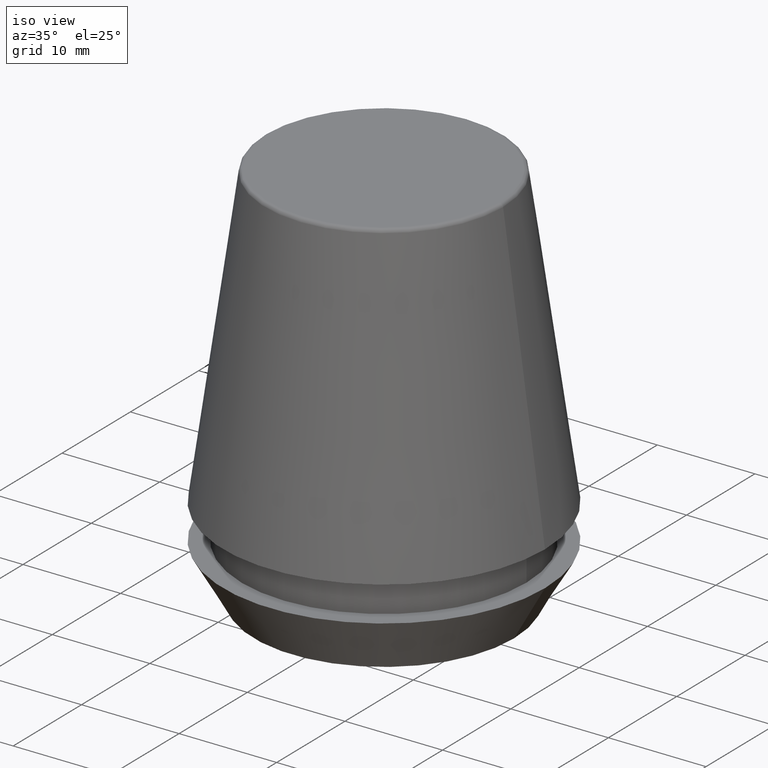
[diagram: clean part render]
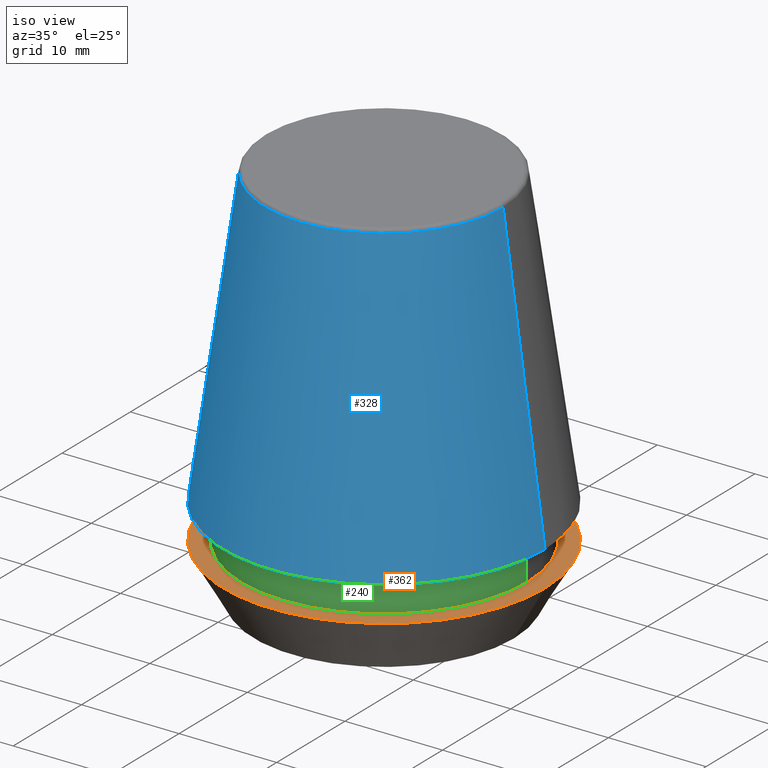
[diagram: same view with three faces highlighted in distinct colors, each labeled with its STEP entity id]
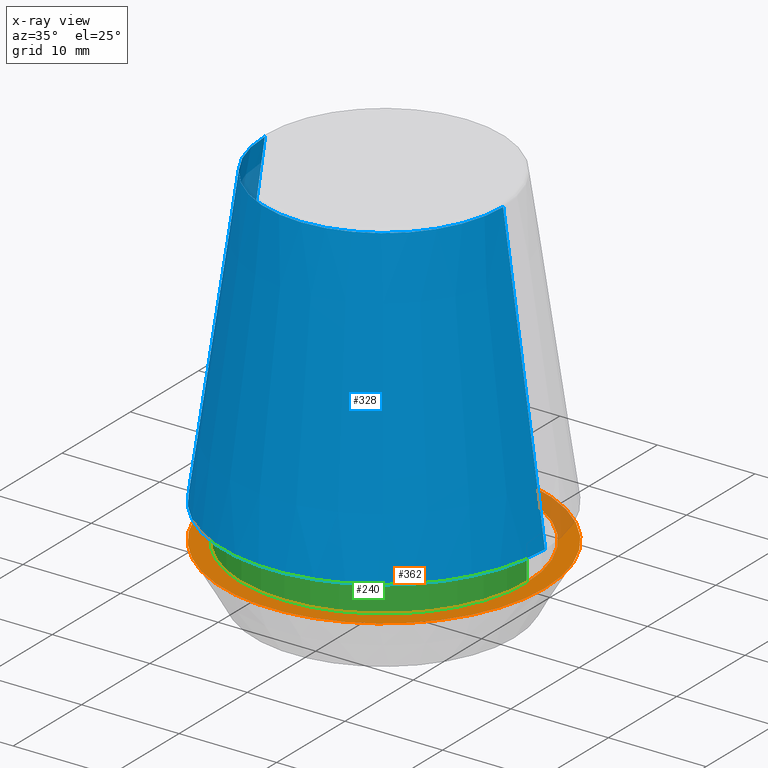
[diagram: x-ray of the same camera — body ghosted, the three highlighted faces saturated]
A machine part, iso view with three faces highlighted in distinct colors.
The next image is the same camera in x-ray (body ghosted, the three faces saturated) — at least one of them is partly hidden behind the body in this view.
Their STEP definitions:

[orange] entity #362 — the highlighted planar face has unit normal (0, 0, -1).
#1 = CARTESIAN_POINT ( 'NONE',  ( 0.0000000000000000000, 0.0000000000000000000, 5.500000000000005300 ) ) ;
#11 = CARTESIAN_POINT ( 'NONE',  ( 0.0000000000000000000, 0.0000000000000000000, 5.500000000000005300 ) ) ;
#18 = AXIS2_PLACEMENT_3D ( 'NONE', #196, #75, #138 ) ;
#27 = ORIENTED_EDGE ( 'NONE', *, *, #276, .T. ) ;
#64 = AXIS2_PLACEMENT_3D ( 'NONE', #130, #327, #156 ) ;
#68 = CARTESIAN_POINT ( 'NONE',  ( 16.50000000000000000, 0.0000000000000000000, 5.500000000000005300 ) ) ;
#69 = FACE_BOUND ( 'NONE', #216, .T. ) ;
#74 = DIRECTION ( 'NONE',  ( 1.000000000000000000, 0.0000000000000000000, 0.0000000000000000000 ) ) ;
#75 = DIRECTION ( 'NONE',  ( -0.0000000000000000000, -0.0000000000000000000, 1.000000000000000000 ) ) ;
#88 = CIRCLE ( 'NONE', #64, 14.60000000000000000 ) ;
#90 = AXIS2_PLACEMENT_3D ( 'NONE', #275, #182, #211 ) ;
#96 = VERTEX_POINT ( 'NONE', #220 ) ;
#104 = ORIENTED_EDGE ( 'NONE', *, *, #105, .F. ) ;
#105 = EDGE_CURVE ( 'NONE', #256, #96, #272, .T. ) ;
#122 = AXIS2_PLACEMENT_3D ( 'NONE', #1, #262, #296 ) ;
#129 = CARTESIAN_POINT ( 'NONE',  ( -16.50000000000000000, 2.020667218593133100E-015, 5.500000000000005300 ) ) ;
#130 = CARTESIAN_POINT ( 'NONE',  ( 0.0000000000000000000, 0.0000000000000000000, 5.500000000000005300 ) ) ;
#138 = DIRECTION ( 'NONE',  ( 1.000000000000000000, 0.0000000000000000000, 0.0000000000000000000 ) ) ;
#153 = CIRCLE ( 'NONE', #122, 16.50000000000000000 ) ;
#156 = DIRECTION ( 'NONE',  ( 1.000000000000000000, 0.0000000000000000000, 0.0000000000000000000 ) ) ;
#168 = CIRCLE ( 'NONE', #18, 16.50000000000000000 ) ;
#182 = DIRECTION ( 'NONE',  ( 0.0000000000000000000, 0.0000000000000000000, -1.000000000000000000 ) ) ;
#186 = ORIENTED_EDGE ( 'NONE', *, *, #377, .T. ) ;
#196 = CARTESIAN_POINT ( 'NONE',  ( 0.0000000000000000000, 0.0000000000000000000, 5.500000000000005300 ) ) ;
#210 = EDGE_CURVE ( 'NONE', #96, #256, #88, .T. ) ;
#211 = DIRECTION ( 'NONE',  ( -1.000000000000000000, 0.0000000000000000000, -0.0000000000000000000 ) ) ;
#214 = PLANE ( 'NONE',  #90 ) ;
#215 = VERTEX_POINT ( 'NONE', #68 ) ;
#216 = EDGE_LOOP ( 'NONE', ( #274, #104 ) ) ;
#219 = AXIS2_PLACEMENT_3D ( 'NONE', #11, #241, #74 ) ;
#220 = CARTESIAN_POINT ( 'NONE',  ( 14.60000000000000000, 0.0000000000000000000, 5.500000000000005300 ) ) ;
#241 = DIRECTION ( 'NONE',  ( -0.0000000000000000000, -0.0000000000000000000, 1.000000000000000000 ) ) ;
#245 = VERTEX_POINT ( 'NONE', #129 ) ;
#256 = VERTEX_POINT ( 'NONE', #330 ) ;
#257 = FACE_OUTER_BOUND ( 'NONE', #372, .T. ) ;
#262 = DIRECTION ( 'NONE',  ( -0.0000000000000000000, -0.0000000000000000000, 1.000000000000000000 ) ) ;
#272 = CIRCLE ( 'NONE', #219, 14.60000000000000000 ) ;
#274 = ORIENTED_EDGE ( 'NONE', *, *, #210, .F. ) ;
#275 = CARTESIAN_POINT ( 'NONE',  ( 0.0000000000000000000, 16.50000000000000000, 5.500000000000002700 ) ) ;
#276 = EDGE_CURVE ( 'NONE', #215, #245, #168, .T. ) ;
#296 = DIRECTION ( 'NONE',  ( 1.000000000000000000, 0.0000000000000000000, 0.0000000000000000000 ) ) ;
#327 = DIRECTION ( 'NONE',  ( -0.0000000000000000000, -0.0000000000000000000, 1.000000000000000000 ) ) ;
#330 = CARTESIAN_POINT ( 'NONE',  ( -14.60000000000000000, 1.787984326755135800E-015, 5.500000000000005300 ) ) ;
#362 = ADVANCED_FACE ( 'NONE', ( #69, #257 ), #214, .F. ) ;
#372 = EDGE_LOOP ( 'NONE', ( #27, #186 ) ) ;
#377 = EDGE_CURVE ( 'NONE', #245, #215, #153, .T. ) ;

[blue] entity #328 — the highlighted conical surface has half-angle 8 deg.
#6 = CARTESIAN_POINT ( 'NONE',  ( 16.50032537154048700, 2.020707065114692300E-015, 9.099999999999997900 ) ) ;
#8 = CARTESIAN_POINT ( 'NONE',  ( -16.50032537154048700, 0.0000000000000000000, 9.099999999999997900 ) ) ;
#17 = DIRECTION ( 'NONE',  ( -1.000000000000000000, 0.0000000000000000000, 0.0000000000000000000 ) ) ;
#30 = VERTEX_POINT ( 'NONE', #198 ) ;
#48 = CIRCLE ( 'NONE', #184, 16.50032537154048700 ) ;
#54 = DIRECTION ( 'NONE',  ( -0.1391731009600586900, 0.0000000000000000000, -0.9902680687415712500 ) ) ;
#56 = VERTEX_POINT ( 'NONE', #282 ) ;
#98 = AXIS2_PLACEMENT_3D ( 'NONE', #347, #367, #101 ) ;
#101 = DIRECTION ( 'NONE',  ( 1.000000000000000000, 0.0000000000000000000, 0.0000000000000000000 ) ) ;
#121 = ORIENTED_EDGE ( 'NONE', *, *, #354, .F. ) ;
#137 = AXIS2_PLACEMENT_3D ( 'NONE', #357, #359, #17 ) ;
#139 = EDGE_LOOP ( 'NONE', ( #121, #202, #325, #144 ) ) ;
#144 = ORIENTED_EDGE ( 'NONE', *, *, #255, .T. ) ;
#147 = FACE_OUTER_BOUND ( 'NONE', #139, .T. ) ;
#148 = LINE ( 'NONE', #304, #285 ) ;
#160 = CONICAL_SURFACE ( 'NONE', #137, 16.50032537154048700, 0.1396263401595395900 ) ;
#169 = VERTEX_POINT ( 'NONE', #8 ) ;
#178 = EDGE_CURVE ( 'NONE', #30, #56, #309, .T. ) ;
#181 = DIRECTION ( 'NONE',  ( 1.000000000000000000, 0.0000000000000000000, 0.0000000000000000000 ) ) ;
#184 = AXIS2_PLACEMENT_3D ( 'NONE', #264, #386, #181 ) ;
#195 = EDGE_CURVE ( 'NONE', #30, #169, #148, .T. ) ;
#198 = CARTESIAN_POINT ( 'NONE',  ( -12.20600611160694300, 0.0000000000000000000, 39.65566924038402900 ) ) ;
#202 = ORIENTED_EDGE ( 'NONE', *, *, #178, .F. ) ;
#225 = LINE ( 'NONE', #252, #381 ) ;
#252 = CARTESIAN_POINT ( 'NONE',  ( 16.50032537154048700, 2.020707065114692300E-015, 9.099999999999997900 ) ) ;
#255 = EDGE_CURVE ( 'NONE', #169, #332, #48, .T. ) ;
#264 = CARTESIAN_POINT ( 'NONE',  ( 0.0000000000000000000, 0.0000000000000000000, 9.099999999999997900 ) ) ;
#273 = DIRECTION ( 'NONE',  ( 0.1391731009600586900, 1.704378926181473100E-017, -0.9902680687415712500 ) ) ;
#282 = CARTESIAN_POINT ( 'NONE',  ( 12.20600611160694300, 1.757755848304969800E-015, 39.65566924038402900 ) ) ;
#285 = VECTOR ( 'NONE', #54, 1000.000000000000000 ) ;
#304 = CARTESIAN_POINT ( 'NONE',  ( -16.50032537154048700, 0.0000000000000000000, 9.099999999999997900 ) ) ;
#309 = CIRCLE ( 'NONE', #98, 12.20600611160694300 ) ;
#325 = ORIENTED_EDGE ( 'NONE', *, *, #195, .T. ) ;
#328 = ADVANCED_FACE ( 'NONE', ( #147 ), #160, .T. ) ;
#332 = VERTEX_POINT ( 'NONE', #6 ) ;
#347 = CARTESIAN_POINT ( 'NONE',  ( 0.0000000000000000000, 0.0000000000000000000, 39.65566924038402900 ) ) ;
#354 = EDGE_CURVE ( 'NONE', #56, #332, #225, .T. ) ;
#357 = CARTESIAN_POINT ( 'NONE',  ( 0.0000000000000000000, 0.0000000000000000000, 9.099999999999997900 ) ) ;
#359 = DIRECTION ( 'NONE',  ( 0.0000000000000000000, 0.0000000000000000000, -1.000000000000000000 ) ) ;
#367 = DIRECTION ( 'NONE',  ( -0.0000000000000000000, -0.0000000000000000000, 1.000000000000000000 ) ) ;
#381 = VECTOR ( 'NONE', #273, 1000.000000000000000 ) ;
#386 = DIRECTION ( 'NONE',  ( -0.0000000000000000000, -0.0000000000000000000, 1.000000000000000000 ) ) ;

[green] entity #240 — the highlighted cylindrical surface (partial cylindrical patch) has radius 14.6 mm, axis along (-0, -0, 1).
#11 = CARTESIAN_POINT ( 'NONE',  ( 0.0000000000000000000, 0.0000000000000000000, 5.500000000000005300 ) ) ;
#19 = CYLINDRICAL_SURFACE ( 'NONE', #31, 14.60000000000000000 ) ;
#22 = VERTEX_POINT ( 'NONE', #49 ) ;
#31 = AXIS2_PLACEMENT_3D ( 'NONE', #374, #342, #99 ) ;
#46 = EDGE_CURVE ( 'NONE', #96, #155, #353, .T. ) ;
#49 = CARTESIAN_POINT ( 'NONE',  ( -14.60000000000000000, 1.787984326755135800E-015, 9.099999999999997900 ) ) ;
#72 = CARTESIAN_POINT ( 'NONE',  ( 0.0000000000000000000, 0.0000000000000000000, 9.099999999999997900 ) ) ;
#74 = DIRECTION ( 'NONE',  ( 1.000000000000000000, 0.0000000000000000000, 0.0000000000000000000 ) ) ;
#82 = VECTOR ( 'NONE', #343, 1000.000000000000000 ) ;
#96 = VERTEX_POINT ( 'NONE', #220 ) ;
#99 = DIRECTION ( 'NONE',  ( 1.000000000000000000, 0.0000000000000000000, 0.0000000000000000000 ) ) ;
#103 = DIRECTION ( 'NONE',  ( 1.000000000000000000, 0.0000000000000000000, 0.0000000000000000000 ) ) ;
#105 = EDGE_CURVE ( 'NONE', #256, #96, #272, .T. ) ;
#111 = CARTESIAN_POINT ( 'NONE',  ( 14.60000000000000000, 0.0000000000000000000, 101.8074564848000400 ) ) ;
#124 = AXIS2_PLACEMENT_3D ( 'NONE', #72, #268, #103 ) ;
#132 = EDGE_CURVE ( 'NONE', #22, #155, #208, .T. ) ;
#155 = VERTEX_POINT ( 'NONE', #161 ) ;
#161 = CARTESIAN_POINT ( 'NONE',  ( 14.60000000000000000, 0.0000000000000000000, 9.099999999999997900 ) ) ;
#175 = FACE_OUTER_BOUND ( 'NONE', #315, .T. ) ;
#176 = ORIENTED_EDGE ( 'NONE', *, *, #132, .F. ) ;
#207 = DIRECTION ( 'NONE',  ( -0.0000000000000000000, -0.0000000000000000000, 1.000000000000000000 ) ) ;
#208 = CIRCLE ( 'NONE', #124, 14.60000000000000000 ) ;
#212 = EDGE_CURVE ( 'NONE', #256, #22, #382, .T. ) ;
#213 = CARTESIAN_POINT ( 'NONE',  ( -14.60000000000000000, 1.787984326755135800E-015, 101.8074564848000400 ) ) ;
#218 = ORIENTED_EDGE ( 'NONE', *, *, #46, .T. ) ;
#219 = AXIS2_PLACEMENT_3D ( 'NONE', #11, #241, #74 ) ;
#220 = CARTESIAN_POINT ( 'NONE',  ( 14.60000000000000000, 0.0000000000000000000, 5.500000000000005300 ) ) ;
#236 = ORIENTED_EDGE ( 'NONE', *, *, #105, .T. ) ;
#240 = ADVANCED_FACE ( 'NONE', ( #175 ), #19, .T. ) ;
#241 = DIRECTION ( 'NONE',  ( -0.0000000000000000000, -0.0000000000000000000, 1.000000000000000000 ) ) ;
#256 = VERTEX_POINT ( 'NONE', #330 ) ;
#267 = ORIENTED_EDGE ( 'NONE', *, *, #212, .F. ) ;
#268 = DIRECTION ( 'NONE',  ( -0.0000000000000000000, -0.0000000000000000000, 1.000000000000000000 ) ) ;
#272 = CIRCLE ( 'NONE', #219, 14.60000000000000000 ) ;
#278 = VECTOR ( 'NONE', #207, 1000.000000000000000 ) ;
#315 = EDGE_LOOP ( 'NONE', ( #267, #236, #218, #176 ) ) ;
#330 = CARTESIAN_POINT ( 'NONE',  ( -14.60000000000000000, 1.787984326755135800E-015, 5.500000000000005300 ) ) ;
#342 = DIRECTION ( 'NONE',  ( -0.0000000000000000000, -0.0000000000000000000, 1.000000000000000000 ) ) ;
#343 = DIRECTION ( 'NONE',  ( -0.0000000000000000000, -0.0000000000000000000, 1.000000000000000000 ) ) ;
#353 = LINE ( 'NONE', #111, #82 ) ;
#374 = CARTESIAN_POINT ( 'NONE',  ( 0.0000000000000000000, 0.0000000000000000000, 101.8074564848000400 ) ) ;
#382 = LINE ( 'NONE', #213, #278 ) ;